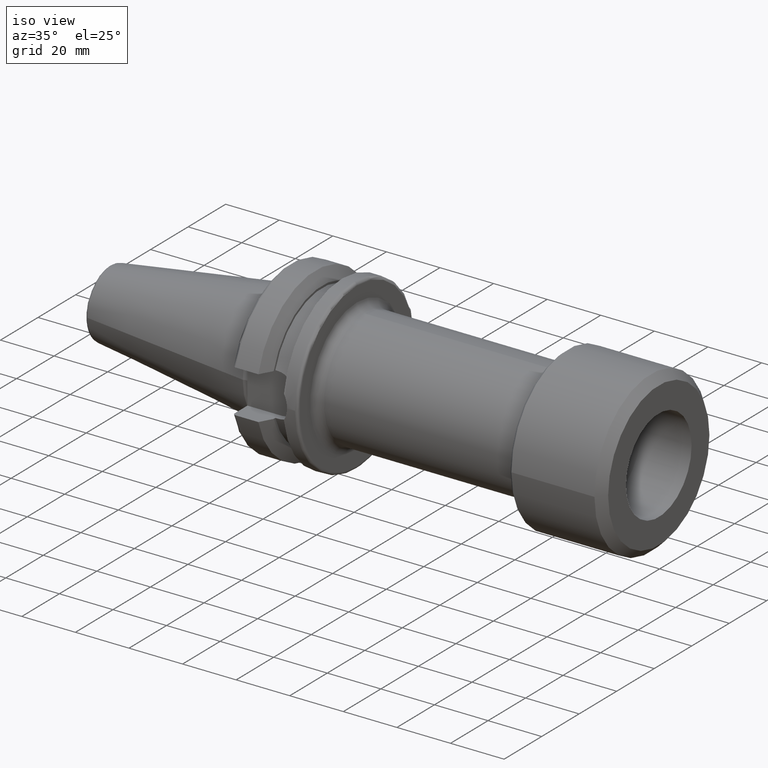
[diagram: clean part render]
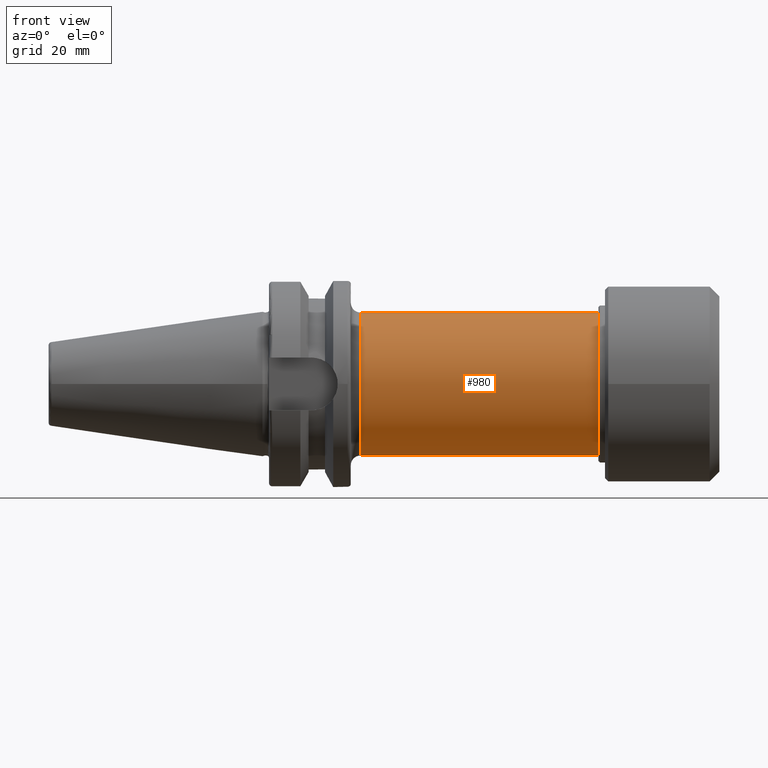
[diagram: tour spotlight — one face highlighted and labeled with its STEP entity id]
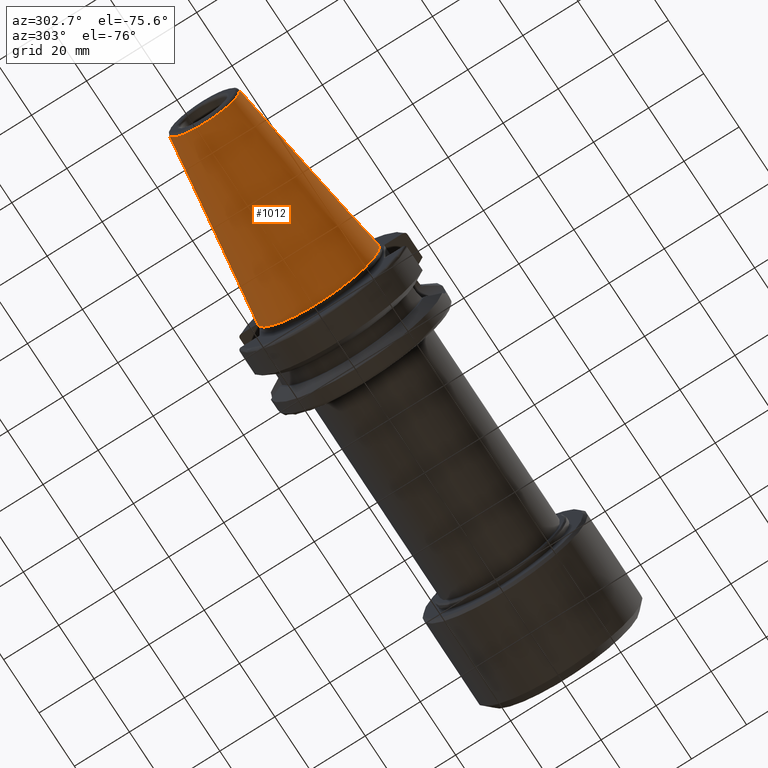
[diagram: tour spotlight — one face highlighted and labeled with its STEP entity id]
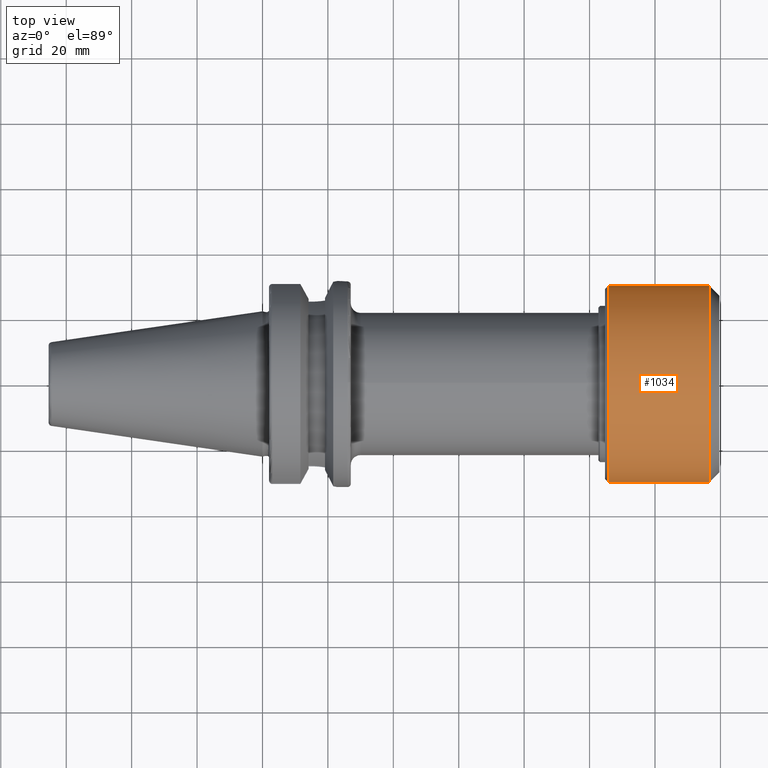
[diagram: tour spotlight — one face highlighted and labeled with its STEP entity id]
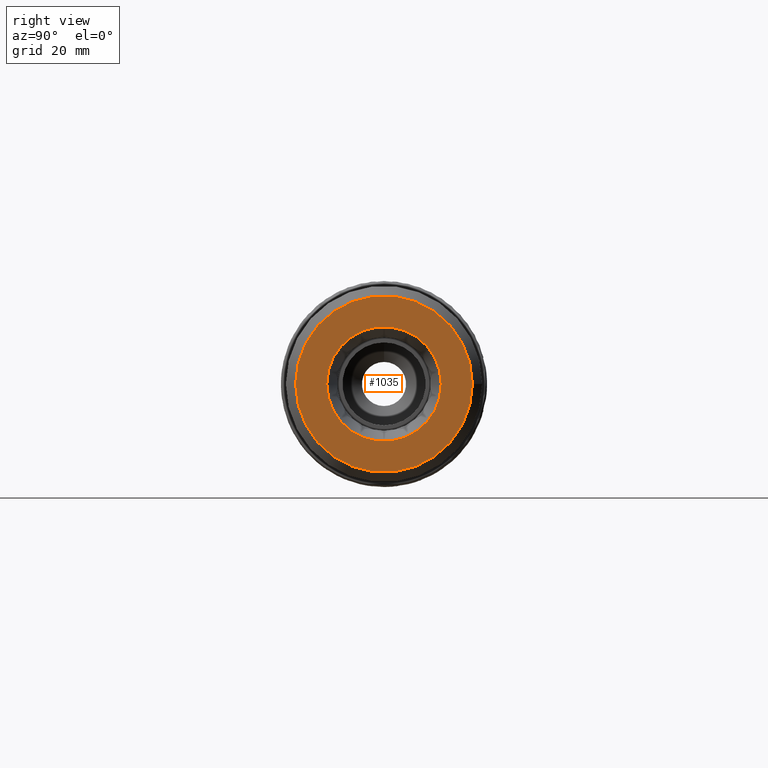
[diagram: tour spotlight — one face highlighted and labeled with its STEP entity id]
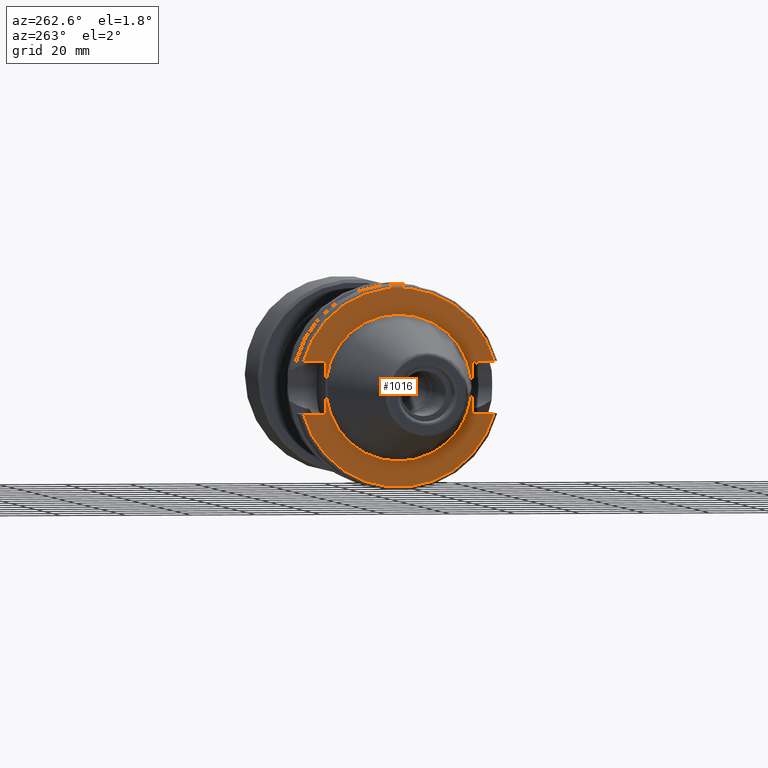
[diagram: tour spotlight — one face highlighted and labeled with its STEP entity id]
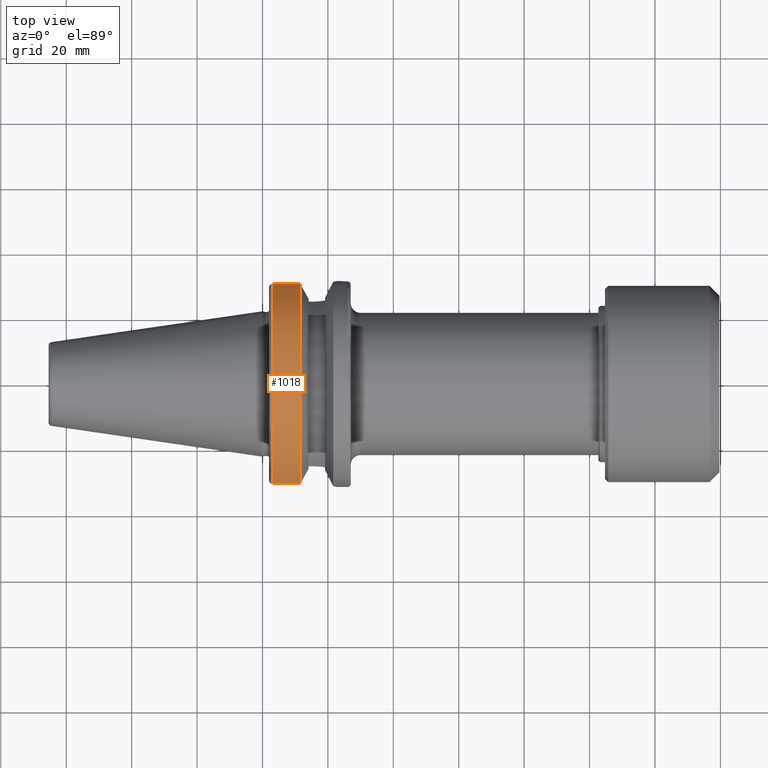
[diagram: tour spotlight — one face highlighted and labeled with its STEP entity id]
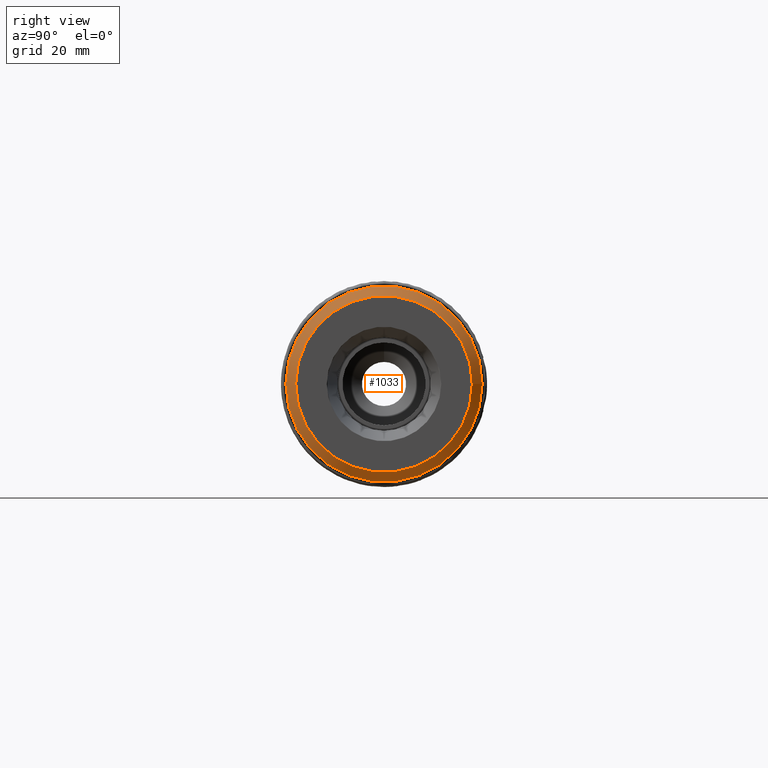
[diagram: tour spotlight — one face highlighted and labeled with its STEP entity id]
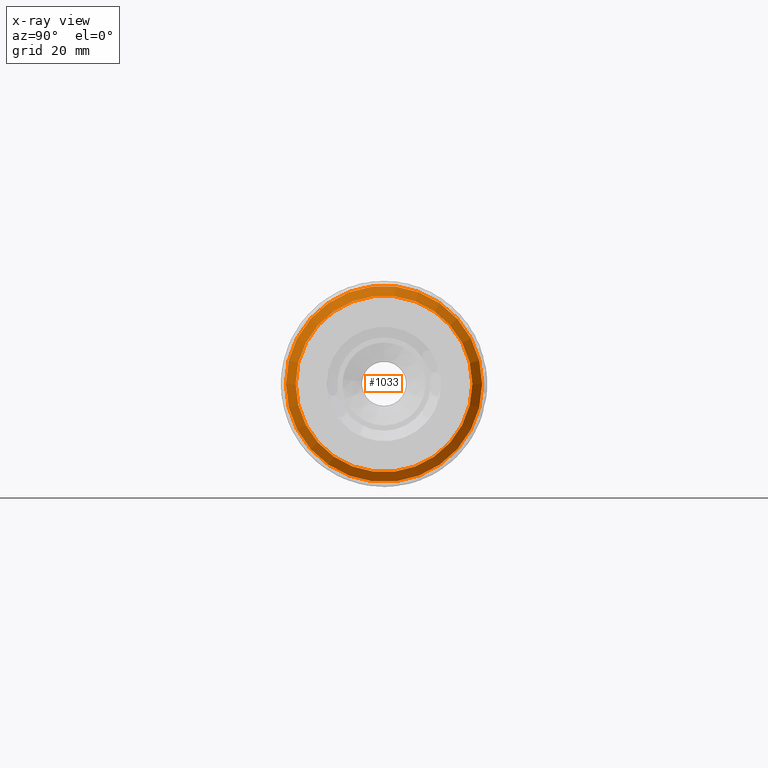
[diagram: x-ray of the same camera — body ghosted, this tour face saturated]
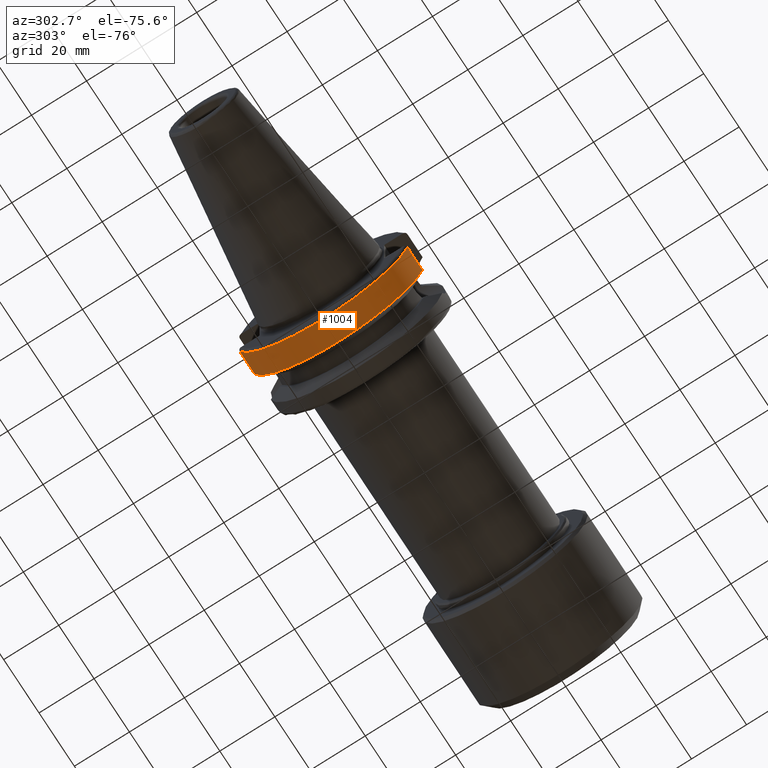
[diagram: tour spotlight — one face highlighted and labeled with its STEP entity id]
A machine part: a face-by-face anatomy tour. The part has 62 B-rep faces; the first image is the clean iso view, then the 8 largest visible faces are spotlighted one at a time (largest first), each with its STEP entity span.

Face 1 — front view, entity #980. In plain terms, the highlighted cylindrical surface (bore or boss wall) has radius 21.85 mm, axis along (1, 0, 0).
Definition (entity closure, byte-faithful):
#94=CYLINDRICAL_SURFACE('',#1127,21.85);
#116=FACE_OUTER_BOUND('',#179,.T.);
#179=EDGE_LOOP('',(#687,#688,#689,#690,#691));
#249=LINE('',#1613,#303);
#303=VECTOR('',#1287,21.85);
#360=CIRCLE('',#1121,21.85);
#361=CIRCLE('',#1123,21.85);
#362=CIRCLE('',#1124,21.85);
#433=VERTEX_POINT('',#1602);
#434=VERTEX_POINT('',#1605);
#435=VERTEX_POINT('',#1606);
#530=EDGE_CURVE('',#433,#433,#360,.T.);
#531=EDGE_CURVE('',#434,#435,#361,.T.);
#532=EDGE_CURVE('',#435,#434,#362,.T.);
#535=EDGE_CURVE('',#433,#435,#249,.T.);
#687=ORIENTED_EDGE('',*,*,#530,.F.);
#688=ORIENTED_EDGE('',*,*,#535,.T.);
#689=ORIENTED_EDGE('',*,*,#531,.F.);
#690=ORIENTED_EDGE('',*,*,#532,.F.);
#691=ORIENTED_EDGE('',*,*,#535,.F.);
#980=ADVANCED_FACE('',(#116),#94,.T.);
#1121=AXIS2_PLACEMENT_3D('',#1603,#1273,#1274);
#1123=AXIS2_PLACEMENT_3D('',#1607,#1277,#1278);
#1124=AXIS2_PLACEMENT_3D('',#1608,#1279,#1280);
#1127=AXIS2_PLACEMENT_3D('',#1612,#1285,#1286);
#1273=DIRECTION('center_axis',(1.,0.,0.));
#1274=DIRECTION('ref_axis',(0.,0.,-1.));
#1277=DIRECTION('center_axis',(-1.,0.,0.));
#1278=DIRECTION('ref_axis',(0.,-1.22464679914735E-16,1.));
#1279=DIRECTION('center_axis',(-1.,0.,0.));
#1280=DIRECTION('ref_axis',(0.,-1.22464679914735E-16,1.));
#1285=DIRECTION('center_axis',(1.,0.,0.));
#1286=DIRECTION('ref_axis',(0.,0.,-1.));
#1287=DIRECTION('',(-1.,0.,0.));
#1602=CARTESIAN_POINT('',(102.7,-2.67585325613697E-15,21.85));
#1603=CARTESIAN_POINT('Origin',(102.7,0.,0.));
#1605=CARTESIAN_POINT('',(30.,0.,-21.85));
#1606=CARTESIAN_POINT('',(30.,-2.67585325613697E-15,21.85));
#1607=CARTESIAN_POINT('Origin',(30.,0.,0.));
#1608=CARTESIAN_POINT('Origin',(30.,0.,0.));
#1612=CARTESIAN_POINT('Origin',(64.85,0.,0.));
#1613=CARTESIAN_POINT('',(64.85,-2.67585325613697E-15,21.85));

Face 2 — auxiliary view, entity #1012. In plain terms, the highlighted conical surface has half-angle 8.297 deg.
Definition (entity closure, byte-faithful):
#148=FACE_OUTER_BOUND('',#215,.T.);
#215=EDGE_LOOP('',(#850,#851,#852,#853,#854));
#290=LINE('',#1908,#344);
#344=VECTOR('',#1460,17.5186442890469);
#394=CIRCLE('',#1188,12.8122885780937);
#395=CIRCLE('',#1189,12.8122885780937);
#398=CIRCLE('',#1193,22.225);
#499=VERTEX_POINT('',#1898);
#500=VERTEX_POINT('',#1899);
#502=VERTEX_POINT('',#1906);
#624=EDGE_CURVE('',#499,#500,#394,.T.);
#625=EDGE_CURVE('',#500,#499,#395,.T.);
#628=EDGE_CURVE('',#502,#502,#398,.T.);
#629=EDGE_CURVE('',#502,#499,#290,.T.);
#850=ORIENTED_EDGE('',*,*,#628,.F.);
#851=ORIENTED_EDGE('',*,*,#629,.T.);
#852=ORIENTED_EDGE('',*,*,#624,.T.);
#853=ORIENTED_EDGE('',*,*,#625,.T.);
#854=ORIENTED_EDGE('',*,*,#629,.F.);
#970=CONICAL_SURFACE('',#1192,17.5186442890469,0.144812498238939);
#1012=ADVANCED_FACE('',(#148),#970,.T.);
#1188=AXIS2_PLACEMENT_3D('',#1900,#1448,#1449);
#1189=AXIS2_PLACEMENT_3D('',#1901,#1450,#1451);
#1192=AXIS2_PLACEMENT_3D('',#1905,#1456,#1457);
#1193=AXIS2_PLACEMENT_3D('',#1907,#1458,#1459);
#1448=DIRECTION('center_axis',(1.,0.,0.));
#1449=DIRECTION('ref_axis',(0.,0.,-1.));
#1450=DIRECTION('center_axis',(1.,0.,0.));
#1451=DIRECTION('ref_axis',(0.,0.,-1.));
#1456=DIRECTION('center_axis',(1.,0.,0.));
#1457=DIRECTION('ref_axis',(0.,1.,0.));
#1458=DIRECTION('center_axis',(1.,0.,0.));
#1459=DIRECTION('ref_axis',(0.,0.,-1.));
#1460=DIRECTION('',(-0.989532981063282,0.144306893071729,1.76724974695192E-17));
#1898=CARTESIAN_POINT('',(-64.5443068930717,-12.8122885780937,-1.56905281969147E-15));
#1899=CARTESIAN_POINT('',(-64.5443068930717,-1.56905281969147E-15,12.8122885780937));
#1900=CARTESIAN_POINT('Origin',(-64.5443068930717,0.,0.));
#1901=CARTESIAN_POINT('Origin',(-64.5443068930717,0.,0.));
#1905=CARTESIAN_POINT('Origin',(-32.2721534465359,0.,0.));
#1906=CARTESIAN_POINT('',(4.44089209850063E-15,-22.225,-2.72177751110499E-15));
#1907=CARTESIAN_POINT('Origin',(0.,0.,0.));
#1908=CARTESIAN_POINT('',(-32.2721534465359,-17.5186442890469,-2.14541516539823E-15));

Face 3 — top view, entity #1034. In plain terms, the highlighted cylindrical surface (bore or boss wall) has radius 30 mm, axis along (1, 0, 0).
Definition (entity closure, byte-faithful):
#111=CYLINDRICAL_SURFACE('',#1242,30.);
#170=FACE_OUTER_BOUND('',#241,.T.);
#241=EDGE_LOOP('',(#946,#947,#948,#949,#950,#951));
#299=LINE('',#1984,#353);
#353=VECTOR('',#1567,30.);
#423=CIRCLE('',#1240,30.);
#424=CIRCLE('',#1241,30.);
#425=CIRCLE('',#1243,30.);
#426=CIRCLE('',#1244,30.);
#518=VERTEX_POINT('',#1977);
#519=VERTEX_POINT('',#1979);
#520=VERTEX_POINT('',#1983);
#521=VERTEX_POINT('',#1985);
#662=EDGE_CURVE('',#518,#519,#423,.T.);
#663=EDGE_CURVE('',#519,#518,#424,.T.);
#664=EDGE_CURVE('',#519,#520,#299,.T.);
#665=EDGE_CURVE('',#521,#520,#425,.T.);
#666=EDGE_CURVE('',#520,#521,#426,.T.);
#946=ORIENTED_EDGE('',*,*,#662,.F.);
#947=ORIENTED_EDGE('',*,*,#663,.F.);
#948=ORIENTED_EDGE('',*,*,#664,.T.);
#949=ORIENTED_EDGE('',*,*,#665,.F.);
#950=ORIENTED_EDGE('',*,*,#666,.F.);
#951=ORIENTED_EDGE('',*,*,#664,.F.);
#1034=ADVANCED_FACE('',(#170),#111,.T.);
#1240=AXIS2_PLACEMENT_3D('',#1980,#1561,#1562);
#1241=AXIS2_PLACEMENT_3D('',#1981,#1563,#1564);
#1242=AXIS2_PLACEMENT_3D('',#1982,#1565,#1566);
#1243=AXIS2_PLACEMENT_3D('',#1986,#1568,#1569);
#1244=AXIS2_PLACEMENT_3D('',#1987,#1570,#1571);
#1561=DIRECTION('center_axis',(1.,0.,0.));
#1562=DIRECTION('ref_axis',(0.,-1.,0.));
#1563=DIRECTION('center_axis',(1.,0.,0.));
#1564=DIRECTION('ref_axis',(0.,-1.,0.));
#1565=DIRECTION('center_axis',(1.,0.,0.));
#1566=DIRECTION('ref_axis',(0.,1.,0.));
#1567=DIRECTION('',(-1.,0.,0.));
#1568=DIRECTION('center_axis',(-1.,0.,0.));
#1569=DIRECTION('ref_axis',(0.,-1.,0.));
#1570=DIRECTION('center_axis',(-1.,0.,0.));
#1571=DIRECTION('ref_axis',(0.,-1.,0.));
#1977=CARTESIAN_POINT('',(32.,30.,3.67394039744206E-15));
#1979=CARTESIAN_POINT('',(32.,-30.,-3.67394039744206E-15));
#1980=CARTESIAN_POINT('Origin',(32.,0.,0.));
#1981=CARTESIAN_POINT('Origin',(32.,0.,0.));
#1982=CARTESIAN_POINT('Origin',(17.5,0.,0.));
#1983=CARTESIAN_POINT('',(1.,-30.,-3.67394039744206E-15));
#1984=CARTESIAN_POINT('',(17.5,-30.,-3.67394039744206E-15));
#1985=CARTESIAN_POINT('',(1.,30.,-3.67394039744206E-15));
#1986=CARTESIAN_POINT('Origin',(1.,0.,0.));
#1987=CARTESIAN_POINT('Origin',(1.,0.,0.));

Face 4 — right view, entity #1035. In plain terms, the highlighted planar face has unit normal (1, 0, 0).
Definition (entity closure, byte-faithful):
#70=FACE_BOUND('',#243,.T.);
#91=PLANE('',#1245);
#171=FACE_OUTER_BOUND('',#242,.T.);
#242=EDGE_LOOP('',(#952));
#243=EDGE_LOOP('',(#953));
#418=CIRCLE('',#1232,17.5);
#422=CIRCLE('',#1239,27.);
#513=VERTEX_POINT('',#1962);
#517=VERTEX_POINT('',#1975);
#654=EDGE_CURVE('',#513,#513,#418,.T.);
#660=EDGE_CURVE('',#517,#517,#422,.T.);
#952=ORIENTED_EDGE('',*,*,#660,.F.);
#953=ORIENTED_EDGE('',*,*,#654,.T.);
#1035=ADVANCED_FACE('',(#171,#70),#91,.T.);
#1232=AXIS2_PLACEMENT_3D('',#1963,#1542,#1543);
#1239=AXIS2_PLACEMENT_3D('',#1976,#1558,#1559);
#1245=AXIS2_PLACEMENT_3D('',#1988,#1572,#1573);
#1542=DIRECTION('center_axis',(-1.,0.,0.));
#1543=DIRECTION('ref_axis',(0.,1.,0.));
#1558=DIRECTION('center_axis',(-1.,0.,0.));
#1559=DIRECTION('ref_axis',(0.,-1.,0.));
#1572=DIRECTION('center_axis',(1.,0.,0.));
#1573=DIRECTION('ref_axis',(0.,0.,-1.));
#1962=CARTESIAN_POINT('',(35.,-17.5,2.14313189850787E-15));
#1963=CARTESIAN_POINT('Origin',(35.,0.,0.));
#1975=CARTESIAN_POINT('',(35.,27.,-3.30654635769785E-15));
#1976=CARTESIAN_POINT('Origin',(35.,0.,0.));
#1988=CARTESIAN_POINT('Origin',(35.,0.,0.));

Face 5 — auxiliary view, entity #1016. In plain terms, the highlighted planar face has unit normal (-1, 0, 0).
Definition (entity closure, byte-faithful):
#66=FACE_BOUND('',#220,.T.);
#85=PLANE('',#1202);
#152=FACE_OUTER_BOUND('',#219,.T.);
#219=EDGE_LOOP('',(#869,#870,#871,#872,#873,#874,#875,#876));
#220=EDGE_LOOP('',(#877));
#266=LINE('',#1742,#320);
#270=LINE('',#1750,#324);
#273=LINE('',#1770,#327);
#284=LINE('',#1870,#338);
#287=LINE('',#1891,#341);
#289=LINE('',#1894,#343);
#320=VECTOR('',#1366,10.);
#324=VECTOR('',#1372,10.);
#327=VECTOR('',#1377,10.);
#338=VECTOR('',#1432,10.);
#341=VECTOR('',#1437,10.);
#343=VECTOR('',#1441,10.);
#391=CIRCLE('',#1179,30.5);
#403=CIRCLE('',#1201,22.5);
#404=CIRCLE('',#1203,30.5);
#467=VERTEX_POINT('',#1730);
#468=VERTEX_POINT('',#1741);
#470=VERTEX_POINT('',#1747);
#471=VERTEX_POINT('',#1749);
#486=VERTEX_POINT('',#1830);
#493=VERTEX_POINT('',#1867);
#494=VERTEX_POINT('',#1869);
#498=VERTEX_POINT('',#1890);
#506=VERTEX_POINT('',#1920);
#576=EDGE_CURVE('',#468,#467,#266,.T.);
#580=EDGE_CURVE('',#471,#470,#270,.T.);
#585=EDGE_CURVE('',#470,#468,#273,.T.);
#605=EDGE_CURVE('',#471,#486,#391,.T.);
#615=EDGE_CURVE('',#494,#493,#284,.T.);
#620=EDGE_CURVE('',#498,#486,#287,.T.);
#622=EDGE_CURVE('',#493,#498,#289,.T.);
#636=EDGE_CURVE('',#506,#506,#403,.T.);
#637=EDGE_CURVE('',#494,#467,#404,.T.);
#869=ORIENTED_EDGE('',*,*,#576,.T.);
#870=ORIENTED_EDGE('',*,*,#637,.F.);
#871=ORIENTED_EDGE('',*,*,#615,.T.);
#872=ORIENTED_EDGE('',*,*,#622,.T.);
#873=ORIENTED_EDGE('',*,*,#620,.T.);
#874=ORIENTED_EDGE('',*,*,#605,.F.);
#875=ORIENTED_EDGE('',*,*,#580,.T.);
#876=ORIENTED_EDGE('',*,*,#585,.T.);
#877=ORIENTED_EDGE('',*,*,#636,.T.);
#1016=ADVANCED_FACE('',(#152,#66),#85,.T.);
#1179=AXIS2_PLACEMENT_3D('',#1831,#1419,#1420);
#1201=AXIS2_PLACEMENT_3D('',#1922,#1477,#1478);
#1202=AXIS2_PLACEMENT_3D('',#1923,#1479,#1480);
#1203=AXIS2_PLACEMENT_3D('',#1924,#1481,#1482);
#1366=DIRECTION('',(0.,-1.,0.));
#1372=DIRECTION('',(0.,1.,0.));
#1377=DIRECTION('',(0.,0.,1.));
#1419=DIRECTION('center_axis',(1.,0.,0.));
#1420=DIRECTION('ref_axis',(0.,0.,-1.));
#1432=DIRECTION('',(0.,-1.,0.));
#1437=DIRECTION('',(0.,1.,0.));
#1441=DIRECTION('',(0.,0.,-1.));
#1477=DIRECTION('center_axis',(1.,0.,0.));
#1478=DIRECTION('ref_axis',(0.,0.,-1.));
#1479=DIRECTION('center_axis',(-1.,0.,0.));
#1480=DIRECTION('ref_axis',(0.,0.,1.));
#1481=DIRECTION('center_axis',(1.,0.,0.));
#1482=DIRECTION('ref_axis',(0.,0.,-1.));
#1730=CARTESIAN_POINT('',(1.99999999999999,-29.4184890842477,8.05));
#1741=CARTESIAN_POINT('',(1.99999999999999,-22.6,8.05));
#1742=CARTESIAN_POINT('',(1.99999999999999,3.95,8.05));
#1747=CARTESIAN_POINT('',(1.99999999999999,-22.6,-8.05));
#1749=CARTESIAN_POINT('',(1.99999999999999,-29.4184890842477,-8.05));
#1750=CARTESIAN_POINT('',(1.99999999999999,3.95,-8.05));
#1770=CARTESIAN_POINT('',(1.99999999999999,-22.6,0.));
#1830=CARTESIAN_POINT('',(1.99999999999999,29.4184890842477,-8.05));
#1831=CARTESIAN_POINT('Origin',(1.99999999999999,0.,0.));
#1867=CARTESIAN_POINT('',(1.99999999999999,22.6,8.05));
#1869=CARTESIAN_POINT('',(1.99999999999999,29.4184890842477,8.05));
#1870=CARTESIAN_POINT('',(1.99999999999999,26.55,8.05));
#1890=CARTESIAN_POINT('',(1.99999999999999,22.6,-8.05));
#1891=CARTESIAN_POINT('',(1.99999999999999,26.55,-8.05));
#1894=CARTESIAN_POINT('',(1.99999999999999,22.6,0.));
#1920=CARTESIAN_POINT('',(2.,-2.75545529808154E-15,22.5));
#1922=CARTESIAN_POINT('Origin',(2.,0.,0.));
#1923=CARTESIAN_POINT('Origin',(1.99999999999999,30.5,0.));
#1924=CARTESIAN_POINT('Origin',(1.99999999999999,0.,0.));

Face 6 — top view, entity #1018. In plain terms, the highlighted cylindrical surface (partial cylindrical patch) has radius 31.5 mm, axis along (1, 0, 0).
Definition (entity closure, byte-faithful):
#105=CYLINDRICAL_SURFACE('',#1206,31.5);
#154=FACE_OUTER_BOUND('',#222,.T.);
#222=EDGE_LOOP('',(#882,#883,#884,#885));
#265=LINE('',#1729,#319);
#285=LINE('',#1883,#339);
#319=VECTOR('',#1365,10.);
#339=VECTOR('',#1433,10.);
#405=CIRCLE('',#1205,31.5);
#406=CIRCLE('',#1207,31.5000000000001);
#465=VERTEX_POINT('',#1724);
#466=VERTEX_POINT('',#1728);
#495=VERTEX_POINT('',#1871);
#496=VERTEX_POINT('',#1882);
#574=EDGE_CURVE('',#466,#465,#265,.T.);
#617=EDGE_CURVE('',#496,#495,#285,.T.);
#638=EDGE_CURVE('',#495,#466,#405,.T.);
#639=EDGE_CURVE('',#496,#465,#406,.T.);
#882=ORIENTED_EDGE('',*,*,#574,.T.);
#883=ORIENTED_EDGE('',*,*,#639,.F.);
#884=ORIENTED_EDGE('',*,*,#617,.T.);
#885=ORIENTED_EDGE('',*,*,#638,.T.);
#1018=ADVANCED_FACE('',(#154),#105,.T.);
#1205=AXIS2_PLACEMENT_3D('',#1926,#1485,#1486);
#1206=AXIS2_PLACEMENT_3D('',#1927,#1487,#1488);
#1207=AXIS2_PLACEMENT_3D('',#1928,#1489,#1490);
#1365=DIRECTION('',(1.,0.,0.));
#1433=DIRECTION('',(-1.,0.,0.));
#1485=DIRECTION('center_axis',(1.,0.,0.));
#1486=DIRECTION('ref_axis',(0.,0.,-1.));
#1487=DIRECTION('center_axis',(1.,0.,0.));
#1488=DIRECTION('ref_axis',(0.,1.,0.));
#1489=DIRECTION('center_axis',(1.,0.,0.));
#1490=DIRECTION('ref_axis',(0.,0.,-1.));
#1724=CARTESIAN_POINT('',(11.5690363073382,-30.4540227227866,8.05));
#1728=CARTESIAN_POINT('',(2.99999999999999,-30.4540227227866,8.05));
#1729=CARTESIAN_POINT('',(7.28451815366907,-30.4540227227866,8.05));
#1871=CARTESIAN_POINT('',(2.99999999999999,30.4540227227866,8.05));
#1882=CARTESIAN_POINT('',(11.5690363073382,30.4540227227866,8.05));
#1883=CARTESIAN_POINT('',(7.28451815366907,30.4540227227866,8.05));
#1926=CARTESIAN_POINT('Origin',(2.99999999999999,0.,0.));
#1927=CARTESIAN_POINT('Origin',(7.28451815366907,0.,0.));
#1928=CARTESIAN_POINT('Origin',(11.5690363073382,0.,0.));

Face 7 — right view, entity #1033. An x-ray twin of the same camera follows (body ghosted, this face saturated) — the face is partly hidden behind the body. In plain terms, the highlighted conical surface has half-angle 45 deg.
Definition (entity closure, byte-faithful):
#169=FACE_OUTER_BOUND('',#240,.T.);
#240=EDGE_LOOP('',(#941,#942,#943,#944,#945));
#298=LINE('',#1978,#352);
#352=VECTOR('',#1560,28.5);
#422=CIRCLE('',#1239,27.);
#423=CIRCLE('',#1240,30.);
#424=CIRCLE('',#1241,30.);
#517=VERTEX_POINT('',#1975);
#518=VERTEX_POINT('',#1977);
#519=VERTEX_POINT('',#1979);
#660=EDGE_CURVE('',#517,#517,#422,.T.);
#661=EDGE_CURVE('',#517,#518,#298,.T.);
#662=EDGE_CURVE('',#518,#519,#423,.T.);
#663=EDGE_CURVE('',#519,#518,#424,.T.);
#941=ORIENTED_EDGE('',*,*,#660,.T.);
#942=ORIENTED_EDGE('',*,*,#661,.T.);
#943=ORIENTED_EDGE('',*,*,#662,.T.);
#944=ORIENTED_EDGE('',*,*,#663,.T.);
#945=ORIENTED_EDGE('',*,*,#661,.F.);
#974=CONICAL_SURFACE('',#1238,28.5,0.785398163397447);
#1033=ADVANCED_FACE('',(#169),#974,.T.);
#1238=AXIS2_PLACEMENT_3D('',#1974,#1556,#1557);
#1239=AXIS2_PLACEMENT_3D('',#1976,#1558,#1559);
#1240=AXIS2_PLACEMENT_3D('',#1980,#1561,#1562);
#1241=AXIS2_PLACEMENT_3D('',#1981,#1563,#1564);
#1556=DIRECTION('center_axis',(-1.,0.,0.));
#1557=DIRECTION('ref_axis',(0.,-1.,0.));
#1558=DIRECTION('center_axis',(-1.,0.,0.));
#1559=DIRECTION('ref_axis',(0.,-1.,0.));
#1560=DIRECTION('',(-0.707106781186549,0.707106781186547,8.65956056235492E-17));
#1561=DIRECTION('center_axis',(1.,0.,0.));
#1562=DIRECTION('ref_axis',(0.,-1.,0.));
#1563=DIRECTION('center_axis',(1.,0.,0.));
#1564=DIRECTION('ref_axis',(0.,-1.,0.));
#1974=CARTESIAN_POINT('Origin',(33.5,0.,0.));
#1975=CARTESIAN_POINT('',(35.,27.,-3.30654635769785E-15));
#1976=CARTESIAN_POINT('Origin',(35.,0.,0.));
#1977=CARTESIAN_POINT('',(32.,30.,3.67394039744206E-15));
#1978=CARTESIAN_POINT('',(33.5,28.5,3.49024337756996E-15));
#1979=CARTESIAN_POINT('',(32.,-30.,-3.67394039744206E-15));
#1980=CARTESIAN_POINT('Origin',(32.,0.,0.));
#1981=CARTESIAN_POINT('Origin',(32.,0.,0.));

Face 8 — auxiliary view, entity #1004. In plain terms, the highlighted cylindrical surface (partial cylindrical patch) has radius 31.5 mm, axis along (1, 0, 0).
Definition (entity closure, byte-faithful):
#102=CYLINDRICAL_SURFACE('',#1176,31.5);
#140=FACE_OUTER_BOUND('',#207,.T.);
#207=EDGE_LOOP('',(#803,#804,#805,#806));
#271=LINE('',#1763,#325);
#278=LINE('',#1828,#332);
#325=VECTOR('',#1373,10.);
#332=VECTOR('',#1416,10.);
#389=CIRCLE('',#1175,31.5000000000001);
#390=CIRCLE('',#1177,31.5);
#472=VERTEX_POINT('',#1751);
#473=VERTEX_POINT('',#1762);
#484=VERTEX_POINT('',#1820);
#485=VERTEX_POINT('',#1826);
#582=EDGE_CURVE('',#473,#472,#271,.T.);
#601=EDGE_CURVE('',#473,#484,#389,.T.);
#603=EDGE_CURVE('',#472,#485,#390,.T.);
#604=EDGE_CURVE('',#485,#484,#278,.T.);
#803=ORIENTED_EDGE('',*,*,#582,.T.);
#804=ORIENTED_EDGE('',*,*,#603,.T.);
#805=ORIENTED_EDGE('',*,*,#604,.T.);
#806=ORIENTED_EDGE('',*,*,#601,.F.);
#1004=ADVANCED_FACE('',(#140),#102,.T.);
#1175=AXIS2_PLACEMENT_3D('',#1821,#1410,#1411);
#1176=AXIS2_PLACEMENT_3D('',#1825,#1412,#1413);
#1177=AXIS2_PLACEMENT_3D('',#1827,#1414,#1415);
#1373=DIRECTION('',(-1.,0.,0.));
#1410=DIRECTION('center_axis',(1.,0.,0.));
#1411=DIRECTION('ref_axis',(0.,0.,-1.));
#1412=DIRECTION('center_axis',(1.,0.,0.));
#1413=DIRECTION('ref_axis',(0.,1.,0.));
#1414=DIRECTION('center_axis',(1.,0.,0.));
#1415=DIRECTION('ref_axis',(0.,0.,-1.));
#1416=DIRECTION('',(1.,0.,0.));
#1751=CARTESIAN_POINT('',(2.99999999999999,-30.4540227227866,-8.05));
#1762=CARTESIAN_POINT('',(11.5690363073382,-30.4540227227866,-8.05));
#1763=CARTESIAN_POINT('',(7.28451815366907,-30.4540227227866,-8.05));
#1820=CARTESIAN_POINT('',(11.5690363073382,30.4540227227866,-8.05));
#1821=CARTESIAN_POINT('Origin',(11.5690363073382,0.,0.));
#1825=CARTESIAN_POINT('Origin',(7.28451815366907,0.,0.));
#1826=CARTESIAN_POINT('',(2.99999999999999,30.4540227227866,-8.05));
#1827=CARTESIAN_POINT('Origin',(2.99999999999999,0.,0.));
#1828=CARTESIAN_POINT('',(7.28451815366907,30.4540227227866,-8.05));